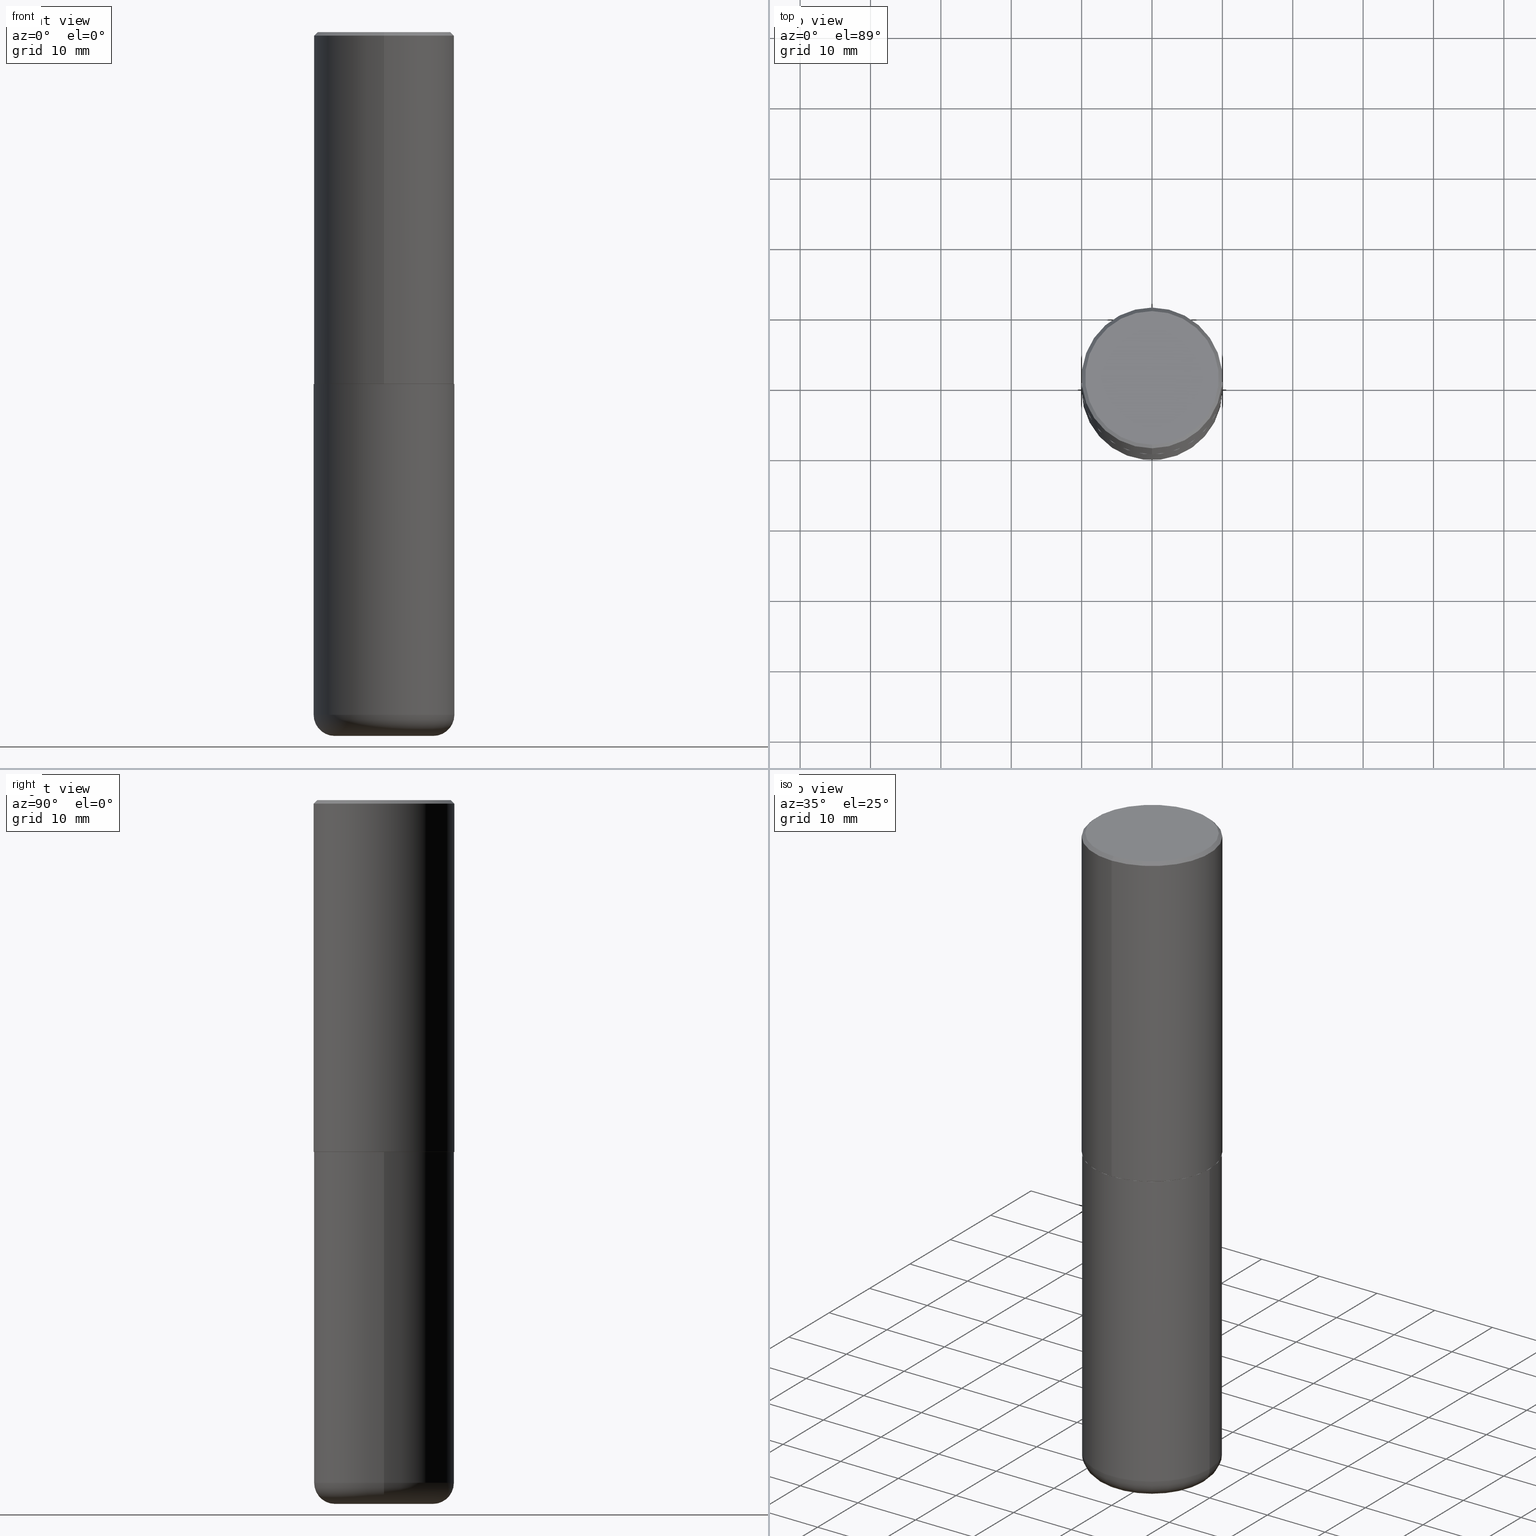
[diagram: canonical four-view strip — front | top / right | iso, engineering-drawing reading convention]
A machine part, canonical four-view strip (front | top / right | iso — engineering-drawing reading convention). The complete STEP part file that produces these views, byte-faithful:
ISO-10303-21;
HEADER;
FILE_DESCRIPTION (( 'STEP AP203' ),
    '1' );
FILE_NAME ('74808.STEP',
    '2024-05-02T19:20:06',
    ( '' ),
    ( '' ),
    'SwSTEP 2.0',
    'SolidWorks 2023',
    '' );
FILE_SCHEMA (( 'CONFIG_CONTROL_DESIGN' ));
ENDSEC;

DATA;
#1 = EDGE_LOOP ( 'NONE', ( #197, #396, #189, #60 ) ) ;
#2 = LOCAL_TIME ( 15, 20, 6.000000000000000000, #144 ) ;
#3 = EDGE_LOOP ( 'NONE', ( #229, #36 ) ) ;
#4 = AXIS2_PLACEMENT_3D ( 'NONE', #27, #19, #185 ) ;
#5 = AXIS2_PLACEMENT_3D ( 'NONE', #41, #336, #261 ) ;
#6 = ORIENTED_EDGE ( 'NONE', *, *, #63, .T. ) ;
#7 = EDGE_CURVE ( 'NONE', #77, #97, #199, .T. ) ;
#8 = DIRECTION ( 'NONE',  ( -2.445468806185136877E-29, 3.491481338843145188E-15, 1.000000000000000000 ) ) ;
#9 = DIRECTION ( 'NONE',  ( -4.937700262165053702E-15, -0.7071067811866175168, 0.7071067811864775177 ) ) ;
#10 = EDGE_CURVE ( 'NONE', #223, #77, #167, .T. ) ;
#11 = CARTESIAN_POINT ( 'NONE',  ( -5.506038201652776757E-45, 7.845509626213831500E-31, 2.249288347782537153E-16 ) ) ;
#12 = ORIENTED_EDGE ( 'NONE', *, *, #337, .F. ) ;
#13 = PLANE ( 'NONE',  #5 ) ;
#14 = CIRCLE ( 'NONE', #38, 0.1181000000000000660 ) ;
#15 = CARTESIAN_POINT ( 'NONE',  ( -2.700978061722651647E-15, -0.3937000000000001609, -0.01999999999999870978 ) ) ;
#16 = CC_DESIGN_APPROVAL ( #157, ( #237 ) ) ;
#17 = DIRECTION ( 'NONE',  ( -6.982962677686265133E-15, -1.000000000000000000, 3.487996385144809755E-15 ) ) ;
#18 = FACE_OUTER_BOUND ( 'NONE', #238, .T. ) ;
#19 = DIRECTION ( 'NONE',  ( -2.445468806185136597E-29, 3.491481338843145583E-15, 1.000000000000000000 ) ) ;
#20 = DATE_TIME_ROLE ( 'classification_date' ) ;
#21 = CLOSED_SHELL ( 'NONE', ( #399, #244, #138, #207, #287, #192, #328, #412 ) ) ;
#22 = AXIS2_PLACEMENT_3D ( 'NONE', #230, #24, #117 ) ;
#23 = COORDINATED_UNIVERSAL_TIME_OFFSET ( 5, 0, .BEHIND. ) ;
#24 = DIRECTION ( 'NONE',  ( 7.105427357601001859E-15, 1.000000000000000000, -3.491481338843145583E-15 ) ) ;
#25 = DATE_AND_TIME ( #405, #2 ) ;
#26 = DIRECTION ( 'NONE',  ( -6.982962677686265133E-15, -1.000000000000000000, 3.478288761986584267E-15 ) ) ;
#27 = CARTESIAN_POINT ( 'NONE',  ( 4.813905344975441835E-29, -6.872981015512731707E-15, -1.968500000000000139 ) ) ;
#28 = APPROVAL_STATUS ( 'not_yet_approved' ) ;
#29 = CARTESIAN_POINT ( 'NONE',  ( 4.816247846760815671E-29, -6.862632887772413316E-15, -1.967500000000000027 ) ) ;
#30 = CIRCLE ( 'NONE', #255, 0.3926999999999999935 ) ;
#31 = AXIS2_PLACEMENT_3D ( 'NONE', #273, #268, #397 ) ;
#32 = CARTESIAN_POINT ( 'NONE',  ( 0.000000000000000000, 0.000000000000000000, 0.000000000000000000 ) ) ;
#33 = CARTESIAN_POINT ( 'NONE',  ( -2.700978061722651647E-15, -0.3937000000000001609, -0.01999999999999870978 ) ) ;
#34 = DIRECTION ( 'NONE',  ( -2.447902336346030930E-29, 3.487996385144809755E-15, 1.000000000000000000 ) ) ;
#35 = VERTEX_POINT ( 'NONE', #370 ) ;
#36 = ORIENTED_EDGE ( 'NONE', *, *, #178, .F. ) ;
#37 = ADVANCED_BREP_SHAPE_REPRESENTATION ( '74808', ( #149, #291, #79 ), #175 ) ;
#38 = AXIS2_PLACEMENT_3D ( 'NONE', #346, #228, #362 ) ;
#39 = EDGE_CURVE ( 'NONE', #159, #35, #14, .T. ) ;
#40 = ORIENTED_EDGE ( 'NONE', *, *, #7, .F. ) ;
#41 = CARTESIAN_POINT ( 'NONE',  ( 4.818695749097161561E-29, -6.866120884157558352E-15, -1.968500000000000139 ) ) ;
#42 = CC_DESIGN_DATE_AND_TIME_ASSIGNMENT ( #119, #20, ( #237 ) ) ;
#43 = ORIENTED_EDGE ( 'NONE', *, *, #94, .T. ) ;
#44 = CIRCLE ( 'NONE', #369, 0.3926999999999999935 ) ;
#45 = DIRECTION ( 'NONE',  ( -2.447902336346030930E-29, 3.487996385144809360E-15, 1.000000000000000000 ) ) ;
#46 = CARTESIAN_POINT ( 'NONE',  ( 4.895804672692082949E-31, -6.975992770289649092E-17, -0.02000000000000008715 ) ) ;
#47 = EDGE_LOOP ( 'NONE', ( #105, #334, #206, #125 ) ) ;
#48 = DIRECTION ( 'NONE',  ( 1.000000000000000000, -6.982962677686266711E-15, 4.876176775795935793E-29 ) ) ;
#49 = APPLICATION_CONTEXT ( 'configuration controlled 3d designs of mechanical parts and assemblies' ) ;
#50 = AXIS2_PLACEMENT_3D ( 'NONE', #114, #80, #87 ) ;
#51 = COORDINATED_UNIVERSAL_TIME_OFFSET ( 5, 0, .BEHIND. ) ;
#52 = CC_DESIGN_PERSON_AND_ORGANIZATION_ASSIGNMENT ( #146, #409, ( #88 ) ) ;
#53 = CARTESIAN_POINT ( 'NONE',  ( 4.818695749097161561E-29, -6.866120884157558352E-15, -1.968500000000000139 ) ) ;
#54 = VECTOR ( 'NONE', #45, 39.37007874015748143 ) ;
#55 = CALENDAR_DATE ( 2024, 2, 5 ) ;
#56 = AXIS2_PLACEMENT_3D ( 'NONE', #218, #222, #355 ) ;
#57 = ADVANCED_FACE ( 'NONE', ( #18 ), #331, .T. ) ;
#58 = CALENDAR_DATE ( 2024, 2, 5 ) ;
#59 = PERSON_AND_ORGANIZATION ( #281, #308 ) ;
#60 = ORIENTED_EDGE ( 'NONE', *, *, #10, .F. ) ;
#61 = CYLINDRICAL_SURFACE ( 'NONE', #115, 0.3937000000000002164 ) ;
#62 = EDGE_LOOP ( 'NONE', ( #226, #172, #303, #109 ) ) ;
#63 = EDGE_CURVE ( 'NONE', #103, #388, #198, .T. ) ;
#64 = VERTEX_POINT ( 'NONE', #69 ) ;
#65 = AXIS2_PLACEMENT_3D ( 'NONE', #368, #72, #168 ) ;
#66 = AXIS2_PLACEMENT_3D ( 'NONE', #391, #239, #112 ) ;
#67 = EDGE_CURVE ( 'NONE', #35, #256, #202, .T. ) ;
#68 = ORIENTED_EDGE ( 'NONE', *, *, #384, .F. ) ;
#69 = CARTESIAN_POINT ( 'NONE',  ( -2.632373081744936315E-15, -0.3736999999999999211, 1.528393083906868747E-15 ) ) ;
#70 = CARTESIAN_POINT ( 'NONE',  ( 2.797406750687540424E-15, 0.3936999999999934441, -1.967500000000001359 ) ) ;
#71 = ORIENTED_EDGE ( 'NONE', *, *, #322, .T. ) ;
#72 = DIRECTION ( 'NONE',  ( 2.438088387897960049E-29, -3.491481338843145188E-15, -1.000000000000000000 ) ) ;
#73 = ORIENTED_EDGE ( 'NONE', *, *, #211, .F. ) ;
#74 = ORIENTED_EDGE ( 'NONE', *, *, #178, .T. ) ;
#75 =( LENGTH_UNIT ( ) NAMED_UNIT ( * ) SI_UNIT ( $, .METRE. ) );
#76 = ADVANCED_FACE ( 'NONE', ( #101 ), #233, .F. ) ;
#77 = VERTEX_POINT ( 'NONE', #176 ) ;
#78 = CARTESIAN_POINT ( 'NONE',  ( 2.793854037008762403E-15, 0.3926999999999931101, -1.968500000000001471 ) ) ;
#79 = AXIS2_PLACEMENT_3D ( 'NONE', #213, #186, #83 ) ;
#80 = DIRECTION ( 'NONE',  ( -2.445468806185136597E-29, 3.491481338843145583E-15, 1.000000000000000000 ) ) ;
#81 = EDGE_CURVE ( 'NONE', #159, #267, #154, .T. ) ;
#82 = APPROVAL_DATE_TIME ( #279, #200 ) ;
#83 = DIRECTION ( 'NONE',  ( 1.000000000000000000, 0.000000000000000000, 0.000000000000000000 ) ) ;
#84 = PRODUCT ( '74808', '74808', '', ( #250 ) ) ;
#85 = CIRCLE ( 'NONE', #224, 0.3937000000000001054 ) ;
#86 = APPROVAL_STATUS ( 'not_yet_approved' ) ;
#87 = DIRECTION ( 'NONE',  ( 1.000000000000000000, -6.982962677686266711E-15, 4.876176775795935793E-29 ) ) ;
#88 = PRODUCT_DEFINITION_FORMATION_WITH_SPECIFIED_SOURCE ( 'ANY', '', #84, .NOT_KNOWN. ) ;
#89 = PERSON_AND_ORGANIZATION ( #281, #308 ) ;
#90 = AXIS2_PLACEMENT_3D ( 'NONE', #204, #341, #364 ) ;
#91 = CARTESIAN_POINT ( 'NONE',  ( -0.3937000000000001054, -1.053621133422057529E-14, -3.818900000000000183 ) ) ;
#92 = EDGE_LOOP ( 'NONE', ( #372, #208 ) ) ;
#93 = ORIENTED_EDGE ( 'NONE', *, *, #359, .T. ) ;
#94 = EDGE_CURVE ( 'NONE', #64, #305, #276, .T. ) ;
#95 = VECTOR ( 'NONE', #98, 39.37007874015748143 ) ;
#96 = VECTOR ( 'NONE', #158, 39.37007874015748143 ) ;
#97 = VERTEX_POINT ( 'NONE', #15 ) ;
#98 = DIRECTION ( 'NONE',  ( -2.447902336346030930E-29, 3.487996385144809360E-15, 1.000000000000000000 ) ) ;
#99 = DIRECTION ( 'NONE',  ( 1.000000000000000000, -6.982962677686266711E-15, 0.000000000000000000 ) ) ;
#100 = ORIENTED_EDGE ( 'NONE', *, *, #39, .T. ) ;
#101 = FACE_OUTER_BOUND ( 'NONE', #92, .T. ) ;
#102 = CARTESIAN_POINT ( 'NONE',  ( 4.895804672692082949E-31, -6.975992770289649092E-17, -0.02000000000000008715 ) ) ;
#103 = VERTEX_POINT ( 'NONE', #70 ) ;
#104 = CARTESIAN_POINT ( 'NONE',  ( 0.2756000000000000116, -1.567046654499579837E-14, -3.937000000000000277 ) ) ;
#105 = ORIENTED_EDGE ( 'NONE', *, *, #107, .T. ) ;
#106 = DIRECTION ( 'NONE',  ( -2.447902336346030930E-29, 3.487996385144809755E-15, 1.000000000000000000 ) ) ;
#107 = EDGE_CURVE ( 'NONE', #35, #240, #394, .T. ) ;
#108 = LINE ( 'NONE', #300, #269 ) ;
#109 = ORIENTED_EDGE ( 'NONE', *, *, #174, .F. ) ;
#110 = DIRECTION ( 'NONE',  ( -6.982962677686265133E-15, -1.000000000000000000, 3.478288761986584267E-15 ) ) ;
#111 = PLANE ( 'NONE',  #215 ) ;
#112 = DIRECTION ( 'NONE',  ( 1.000000000000000000, -6.982962677686266711E-15, 0.000000000000000000 ) ) ;
#113 = AXIS2_PLACEMENT_3D ( 'NONE', #137, #210, #99 ) ;
#114 = CARTESIAN_POINT ( 'NONE',  ( 0.000000000000000000, 0.000000000000000000, 0.000000000000000000 ) ) ;
#115 = AXIS2_PLACEMENT_3D ( 'NONE', #314, #34, #148 ) ;
#116 = ADVANCED_FACE ( 'NONE', ( #271 ), #111, .T. ) ;
#117 = DIRECTION ( 'NONE',  ( -1.000000000000000000, 7.105427357601000281E-15, 0.000000000000000000 ) ) ;
#118 = EDGE_CURVE ( 'NONE', #127, #103, #108, .T. ) ;
#119 = DATE_AND_TIME ( #220, #140 ) ;
#120 = PERSON_AND_ORGANIZATION_ROLE ( 'design_owner' ) ;
#121 = CARTESIAN_POINT ( 'NONE',  ( -0.2756000000000000116, -1.116195879274560421E-14, -3.937000000000000277 ) ) ;
#122 = CC_DESIGN_SECURITY_CLASSIFICATION ( #237, ( #88 ) ) ;
#123 = FACE_OUTER_BOUND ( 'NONE', #234, .T. ) ;
#124 = CC_DESIGN_PERSON_AND_ORGANIZATION_ASSIGNMENT ( #315, #348, ( #214 ) ) ;
#125 = ORIENTED_EDGE ( 'NONE', *, *, #67, .F. ) ;
#126 = LOCAL_TIME ( 15, 20, 6.000000000000000000, #51 ) ;
#127 = VERTEX_POINT ( 'NONE', #78 ) ;
#128 = EDGE_CURVE ( 'NONE', #97, #388, #85, .T. ) ;
#129 = EDGE_LOOP ( 'NONE', ( #320, #6, #194, #40 ) ) ;
#130 = DIRECTION ( 'NONE',  ( -2.445468806185136597E-29, 3.491481338843145583E-15, 1.000000000000000000 ) ) ;
#131 = CIRCLE ( 'NONE', #4, 0.3937000000000000499 ) ;
#132 = CARTESIAN_POINT ( 'NONE',  ( 9.627810689950883669E-29, -1.374596203102546341E-14, -3.937000000000000277 ) ) ;
#133 = EDGE_LOOP ( 'NONE', ( #366, #163, #253, #338 ) ) ;
#134 =( NAMED_UNIT ( * ) PLANE_ANGLE_UNIT ( ) SI_UNIT ( $, .RADIAN. ) );
#135 = ORIENTED_EDGE ( 'NONE', *, *, #235, .T. ) ;
#136 = CARTESIAN_POINT ( 'NONE',  ( 4.813905344975441835E-29, -6.872981015512731707E-15, -1.968500000000000139 ) ) ;
#137 = CARTESIAN_POINT ( 'NONE',  ( 9.339000823940418668E-29, -1.333361808490808928E-14, -3.818900000000000183 ) ) ;
#138 = ADVANCED_FACE ( 'NONE', ( #392 ), #323, .T. ) ;
#139 = ORIENTED_EDGE ( 'NONE', *, *, #107, .F. ) ;
#140 = LOCAL_TIME ( 15, 20, 6.000000000000000000, #181 ) ;
#141 = ORIENTED_EDGE ( 'NONE', *, *, #337, .T. ) ;
#142 = FACE_OUTER_BOUND ( 'NONE', #1, .T. ) ;
#143 = DIRECTION ( 'NONE',  ( 1.000000000000000000, -6.982962677686265922E-15, 0.000000000000000000 ) ) ;
#144 = COORDINATED_UNIVERSAL_TIME_OFFSET ( 5, 0, .BEHIND. ) ;
#145 = CONICAL_SURFACE ( 'NONE', #415, 0.3926999999999999935, 0.7853981633975507526 ) ;
#146 = PERSON_AND_ORGANIZATION ( #281, #308 ) ;
#147 = APPROVAL_DATE_TIME ( #183, #157 ) ;
#148 = DIRECTION ( 'NONE',  ( -6.982962677686265922E-15, -1.000000000000000000, 3.487996385144809360E-15 ) ) ;
#149 = MANIFOLD_SOLID_BREP ( 'Body-Move/Copy2[1]', #236 ) ;
#150 = CARTESIAN_POINT ( 'NONE',  ( 4.818695749097161561E-29, -6.866120884157558352E-15, -1.968500000000000139 ) ) ;
#151 = APPROVAL_DATE_TIME ( #25, #219 ) ;
#152 = FACE_OUTER_BOUND ( 'NONE', #321, .T. ) ;
#153 = DIRECTION ( 'NONE',  ( -2.445468806185136597E-29, 3.491481338843145583E-15, 1.000000000000000000 ) ) ;
#154 = CIRCLE ( 'NONE', #350, 0.2756000000000000116 ) ;
#155 = PERSON_AND_ORGANIZATION ( #281, #308 ) ;
#156 = VECTOR ( 'NONE', #378, 39.37007874015748143 ) ;
#157 = APPROVAL ( #86, 'UNSPECIFIED' ) ;
#158 = DIRECTION ( 'NONE',  ( 4.937700262164533054E-15, 0.7071067811865430208, -0.7071067811865520136 ) ) ;
#159 = VERTEX_POINT ( 'NONE', #104 ) ;
#160 = AXIS2_PLACEMENT_3D ( 'NONE', #11, #400, #17 ) ;
#161 = CIRCLE ( 'NONE', #22, 0.1181000000000000660 ) ;
#162 = ORIENTED_EDGE ( 'NONE', *, *, #7, .T. ) ;
#163 = ORIENTED_EDGE ( 'NONE', *, *, #359, .F. ) ;
#164 = DIRECTION ( 'NONE',  ( -2.445468806185136597E-29, 3.491481338843145583E-15, 1.000000000000000000 ) ) ;
#165 = CIRCLE ( 'NONE', #351, 0.3937000000000001054 ) ;
#166 = DIRECTION ( 'NONE',  ( -1.000000000000000000, 6.982962677686265922E-15, -4.876176775795935793E-29 ) ) ;
#167 = LINE ( 'NONE', #301, #293 ) ;
#168 = DIRECTION ( 'NONE',  ( -1.000000000000000000, 6.982962677686265922E-15, -4.876176775795935793E-29 ) ) ;
#169 = DESIGN_CONTEXT ( 'detailed design', #49, 'design' ) ;
#170 = ORIENTED_EDGE ( 'NONE', *, *, #398, .F. ) ;
#171 = EDGE_CURVE ( 'NONE', #127, #223, #30, .T. ) ;
#172 = ORIENTED_EDGE ( 'NONE', *, *, #384, .T. ) ;
#173 = CARTESIAN_POINT ( 'NONE',  ( 2.749192406205084005E-15, 0.3937000000000000499, -0.02000000000000146105 ) ) ;
#174 = EDGE_CURVE ( 'NONE', #203, #256, #131, .T. ) ;
#175 =( GEOMETRIC_REPRESENTATION_CONTEXT ( 3 ) GLOBAL_UNCERTAINTY_ASSIGNED_CONTEXT ( ( #356 ) ) GLOBAL_UNIT_ASSIGNED_CONTEXT ( ( #298, #134, #274 ) ) REPRESENTATION_CONTEXT ( 'NONE', 'WORKASPACE' ) );
#176 = CARTESIAN_POINT ( 'NONE',  ( -2.749192406205036674E-15, -0.3937000000000070998, -1.967499999999998694 ) ) ;
#177 = LENGTH_MEASURE_WITH_UNIT ( LENGTH_MEASURE( 0.02539999999999999897 ), #75 );
#178 = EDGE_CURVE ( 'NONE', #267, #159, #242, .T. ) ;
#179 = APPROVAL_PERSON_ORGANIZATION ( #89, #219, #377 ) ;
#180 = CYLINDRICAL_SURFACE ( 'NONE', #50, 0.3937000000000001054 ) ;
#181 = COORDINATED_UNIVERSAL_TIME_OFFSET ( 5, 0, .BEHIND. ) ;
#182 = DIRECTION ( 'NONE',  ( 2.447902336346030930E-29, -3.487996385144809755E-15, -1.000000000000000000 ) ) ;
#183 = DATE_AND_TIME ( #58, #195 ) ;
#184 = CARTESIAN_POINT ( 'NONE',  ( 4.818695749097161561E-29, -6.866120884157558352E-15, -1.968500000000000139 ) ) ;
#185 = DIRECTION ( 'NONE',  ( 1.000000000000000000, -6.982962677686265133E-15, 0.000000000000000000 ) ) ;
#186 = DIRECTION ( 'NONE',  ( 0.000000000000000000, 0.000000000000000000, 1.000000000000000000 ) ) ;
#187 = VECTOR ( 'NONE', #8, 39.37007874015748143 ) ;
#188 = AXIS2_PLACEMENT_3D ( 'NONE', #232, #367, #110 ) ;
#189 = ORIENTED_EDGE ( 'NONE', *, *, #380, .F. ) ;
#190 = LINE ( 'NONE', #33, #209 ) ;
#191 = DIRECTION ( 'NONE',  ( -2.447902336346030930E-29, 3.487996385144809755E-15, 1.000000000000000000 ) ) ;
#192 = ADVANCED_FACE ( 'NONE', ( #284 ), #145, .T. ) ;
#193 = CARTESIAN_POINT ( 'NONE',  ( 2.679362779428220707E-15, 0.3736999999999999211, -1.078535414350361218E-15 ) ) ;
#194 = ORIENTED_EDGE ( 'NONE', *, *, #128, .F. ) ;
#195 = LOCAL_TIME ( 15, 20, 6.000000000000000000, #23 ) ;
#196 = ADVANCED_FACE ( 'NONE', ( #404 ), #180, .T. ) ;
#197 = ORIENTED_EDGE ( 'NONE', *, *, #263, .T. ) ;
#198 = LINE ( 'NONE', #258, #95 ) ;
#199 = LINE ( 'NONE', #332, #54 ) ;
#200 = APPROVAL ( #344, 'UNSPECIFIED' ) ;
#201 = CIRCLE ( 'NONE', #66, 0.3937000000000001054 ) ;
#202 = LINE ( 'NONE', #329, #187 ) ;
#203 = VERTEX_POINT ( 'NONE', #225 ) ;
#204 = CARTESIAN_POINT ( 'NONE',  ( 2.609533152651356620E-15, 0.3736999999999999211, -1.190999831739488445E-15 ) ) ;
#205 = DIRECTION ( 'NONE',  ( 1.000000000000000000, -6.982962677686265133E-15, 0.000000000000000000 ) ) ;
#206 = ORIENTED_EDGE ( 'NONE', *, *, #325, .F. ) ;
#207 = ADVANCED_FACE ( 'NONE', ( #246 ), #227, .T. ) ;
#208 = ORIENTED_EDGE ( 'NONE', *, *, #174, .T. ) ;
#209 = VECTOR ( 'NONE', #292, 39.37007874015748143 ) ;
#210 = DIRECTION ( 'NONE',  ( -2.445468806185136597E-29, 3.491481338843145583E-15, 1.000000000000000000 ) ) ;
#211 = EDGE_CURVE ( 'NONE', #305, #388, #318, .T. ) ;
#212 = PERSON_AND_ORGANIZATION_ROLE ( 'creator' ) ;
#213 = CARTESIAN_POINT ( 'NONE',  ( 0.000000000000000000, 0.000000000000000000, 0.000000000000000000 ) ) ;
#214 = PRODUCT_DEFINITION ( 'UNKNOWN', '', #88, #169 ) ;
#215 = AXIS2_PLACEMENT_3D ( 'NONE', #365, #241, #166 ) ;
#216 = CC_DESIGN_APPROVAL ( #200, ( #214 ) ) ;
#217 = APPROVAL_ROLE ( '' ) ;
#218 = CARTESIAN_POINT ( 'NONE',  ( 9.339000823940418668E-29, -1.333361808490808928E-14, -3.818900000000000183 ) ) ;
#219 = APPROVAL ( #28, 'UNSPECIFIED' ) ;
#220 = CALENDAR_DATE ( 2024, 2, 5 ) ;
#221 = PRODUCT_RELATED_PRODUCT_CATEGORY ( 'detail', '', ( #84 ) ) ;
#222 = DIRECTION ( 'NONE',  ( -2.445468806185136597E-29, 3.491481338843145583E-15, 1.000000000000000000 ) ) ;
#223 = VERTEX_POINT ( 'NONE', #319 ) ;
#224 = AXIS2_PLACEMENT_3D ( 'NONE', #343, #371, #264 ) ;
#225 = CARTESIAN_POINT ( 'NONE',  ( -0.3937000000000000499, -7.305892799522895709E-15, -1.968500000000000139 ) ) ;
#226 = ORIENTED_EDGE ( 'NONE', *, *, #249, .F. ) ;
#227 = CONICAL_SURFACE ( 'NONE', #257, 0.3937000000000001054, 0.7853981633974453924 ) ;
#228 = DIRECTION ( 'NONE',  ( -6.982962677686266711E-15, -1.000000000000000000, 3.491481338843145583E-15 ) ) ;
#229 = ORIENTED_EDGE ( 'NONE', *, *, #81, .F. ) ;
#230 = CARTESIAN_POINT ( 'NONE',  ( -0.2756000000000000116, -1.137536230515325427E-14, -3.818900000000000183 ) ) ;
#231 = ORIENTED_EDGE ( 'NONE', *, *, #235, .F. ) ;
#232 = CARTESIAN_POINT ( 'NONE',  ( 4.818695749097161561E-29, -6.866120884157558352E-15, -1.968500000000000139 ) ) ;
#233 = PLANE ( 'NONE',  #65 ) ;
#234 = EDGE_LOOP ( 'NONE', ( #12, #74, #100, #68 ) ) ;
#235 = EDGE_CURVE ( 'NONE', #103, #77, #333, .T. ) ;
#236 = CLOSED_SHELL ( 'NONE', ( #196, #57, #76, #347, #254, #116 ) ) ;
#237 = SECURITY_CLASSIFICATION ( '', '', #352 ) ;
#238 = EDGE_LOOP ( 'NONE', ( #390, #141, #139, #296 ) ) ;
#239 = DIRECTION ( 'NONE',  ( -2.445468806185136597E-29, 3.491481338843145583E-15, 1.000000000000000000 ) ) ;
#240 = VERTEX_POINT ( 'NONE', #91 ) ;
#241 = DIRECTION ( 'NONE',  ( 2.438088387897960049E-29, -3.491481338843145188E-15, -1.000000000000000000 ) ) ;
#242 = CIRCLE ( 'NONE', #406, 0.2756000000000000116 ) ;
#243 = CIRCLE ( 'NONE', #31, 0.3736999999999999211 ) ;
#244 = ADVANCED_FACE ( 'NONE', ( #382 ), #61, .T. ) ;
#245 = PERSON_AND_ORGANIZATION ( #281, #308 ) ;
#246 = FACE_OUTER_BOUND ( 'NONE', #133, .T. ) ;
#247 = AXIS2_PLACEMENT_3D ( 'NONE', #389, #262, #326 ) ;
#248 = AXIS2_PLACEMENT_3D ( 'NONE', #260, #106, #402 ) ;
#249 = EDGE_CURVE ( 'NONE', #240, #203, #411, .T. ) ;
#250 = MECHANICAL_CONTEXT ( 'NONE', #286, 'mechanical' ) ;
#251 = DIRECTION ( 'NONE',  ( -2.447902336346030930E-29, 3.487996385144809755E-15, 1.000000000000000000 ) ) ;
#252 = APPROVAL_PERSON_ORGANIZATION ( #280, #200, #414 ) ;
#253 = ORIENTED_EDGE ( 'NONE', *, *, #211, .T. ) ;
#254 = ADVANCED_FACE ( 'NONE', ( #123 ), #357, .T. ) ;
#255 = AXIS2_PLACEMENT_3D ( 'NONE', #150, #413, #408 ) ;
#256 = VERTEX_POINT ( 'NONE', #289 ) ;
#257 = AXIS2_PLACEMENT_3D ( 'NONE', #383, #182, #358 ) ;
#258 = CARTESIAN_POINT ( 'NONE',  ( 2.797406750687515575E-15, 0.3937000000000002164, -1.373224176831512262E-15 ) ) ;
#259 = ORIENTED_EDGE ( 'NONE', *, *, #94, .F. ) ;
#260 = CARTESIAN_POINT ( 'NONE',  ( 4.816247846760815671E-29, -6.862632887772413316E-15, -1.967500000000000027 ) ) ;
#261 = DIRECTION ( 'NONE',  ( -6.982962677686265922E-15, -1.000000000000000000, 3.487996385144809360E-15 ) ) ;
#262 = DIRECTION ( 'NONE',  ( -2.445468806185136597E-29, 3.491481338843145583E-15, 1.000000000000000000 ) ) ;
#263 = EDGE_CURVE ( 'NONE', #223, #127, #44, .T. ) ;
#264 = DIRECTION ( 'NONE',  ( -6.982962677686265133E-15, -1.000000000000000000, 3.491137977679279029E-15 ) ) ;
#265 = EDGE_LOOP ( 'NONE', ( #259, #71, #327, #73 ) ) ;
#266 = DIRECTION ( 'NONE',  ( -2.447902336346030930E-29, 3.487996385144809755E-15, 1.000000000000000000 ) ) ;
#267 = VERTEX_POINT ( 'NONE', #121 ) ;
#268 = DIRECTION ( 'NONE',  ( -2.447902336346030930E-29, 3.487996385144809755E-15, 1.000000000000000000 ) ) ;
#269 = VECTOR ( 'NONE', #375, 39.37007874015748143 ) ;
#270 = CIRCLE ( 'NONE', #277, 0.3937000000000000499 ) ;
#271 = FACE_OUTER_BOUND ( 'NONE', #3, .T. ) ;
#272 = ORIENTED_EDGE ( 'NONE', *, *, #118, .F. ) ;
#273 = CARTESIAN_POINT ( 'NONE',  ( -5.506038201652776757E-45, 7.845509626213831500E-31, 2.249288347782537153E-16 ) ) ;
#274 =( NAMED_UNIT ( * ) SI_UNIT ( $, .STERADIAN. ) SOLID_ANGLE_UNIT ( ) );
#275 = DIRECTION ( 'NONE',  ( -6.982962677686265133E-15, -1.000000000000000000, 3.478288761986584267E-15 ) ) ;
#276 = CIRCLE ( 'NONE', #160, 0.3736999999999999211 ) ;
#277 = AXIS2_PLACEMENT_3D ( 'NONE', #136, #164, #205 ) ;
#278 = CC_DESIGN_PERSON_AND_ORGANIZATION_ASSIGNMENT ( #310, #120, ( #84 ) ) ;
#279 = DATE_AND_TIME ( #410, #312 ) ;
#280 = PERSON_AND_ORGANIZATION ( #281, #308 ) ;
#281 = PERSON ( 'UNSPECIFIED', 'UNSPECIFIED', 'UNSPECIFIED', ('UNSPECIFIED'), ('UNSPECIFIED'), ('UNSPECIFIED') ) ;
#282 = APPLICATION_PROTOCOL_DEFINITION ( 'international standard', 'config_control_design', 1994, #49 ) ;
#283 = CYLINDRICAL_SURFACE ( 'NONE', #387, 0.3937000000000002164 ) ;
#284 = FACE_OUTER_BOUND ( 'NONE', #294, .T. ) ;
#285 = CARTESIAN_POINT ( 'NONE',  ( 2.749192406205084005E-15, 0.3937000000000000499, -0.02000000000000146105 ) ) ;
#286 = APPLICATION_CONTEXT ( 'configuration controlled 3d designs of mechanical parts and assemblies' ) ;
#287 = ADVANCED_FACE ( 'NONE', ( #152 ), #283, .T. ) ;
#288 = DIRECTION ( 'NONE',  ( -6.982962677686265922E-15, -1.000000000000000000, 3.487996385144809360E-15 ) ) ;
#289 = CARTESIAN_POINT ( 'NONE',  ( 0.3937000000000000499, -9.622173421717814924E-15, -1.968500000000000139 ) ) ;
#290 = ORIENTED_EDGE ( 'NONE', *, *, #10, .T. ) ;
#291 = MANIFOLD_SOLID_BREP ( 'Body-Move/Copy2[2]', #21 ) ;
#292 = DIRECTION ( 'NONE',  ( -4.851104656540950075E-15, -0.7071067811865479058, -0.7071067811865471286 ) ) ;
#293 = VECTOR ( 'NONE', #9, 39.37007874015748143 ) ;
#294 = EDGE_LOOP ( 'NONE', ( #272, #374, #290, #231 ) ) ;
#295 = CARTESIAN_POINT ( 'NONE',  ( 0.000000000000000000, 0.000000000000000000, 0.000000000000000000 ) ) ;
#296 = ORIENTED_EDGE ( 'NONE', *, *, #39, .F. ) ;
#297 = ORIENTED_EDGE ( 'NONE', *, *, #263, .F. ) ;
#298 =( CONVERSION_BASED_UNIT ( 'INCH', #177 ) LENGTH_UNIT ( ) NAMED_UNIT ( #401 ) );
#299 = AXIS2_PLACEMENT_3D ( 'NONE', #29, #191, #349 ) ;
#300 = CARTESIAN_POINT ( 'NONE',  ( 2.790301323329961110E-15, 0.3926999999999931101, -1.968500000000001471 ) ) ;
#301 = CARTESIAN_POINT ( 'NONE',  ( -2.742209443527348687E-15, -0.3927000000000069324, -1.968499999999998584 ) ) ;
#302 = DIRECTION ( 'NONE',  ( 2.447902336346030930E-29, -3.487996385144809755E-15, -1.000000000000000000 ) ) ;
#303 = ORIENTED_EDGE ( 'NONE', *, *, #67, .T. ) ;
#304 = FACE_OUTER_BOUND ( 'NONE', #393, .T. ) ;
#305 = VERTEX_POINT ( 'NONE', #193 ) ;
#306 = FACE_OUTER_BOUND ( 'NONE', #386, .T. ) ;
#307 = AXIS2_PLACEMENT_3D ( 'NONE', #102, #302, #395 ) ;
#308 = ORGANIZATION ( 'UNSPECIFIED', 'UNSPECIFIED', '' ) ;
#309 = PLANE ( 'NONE',  #90 ) ;
#310 = PERSON_AND_ORGANIZATION ( #281, #308 ) ;
#311 = PERSON_AND_ORGANIZATION_ROLE ( 'classification_officer' ) ;
#312 = LOCAL_TIME ( 15, 20, 6.000000000000000000, #417 ) ;
#313 = DATE_TIME_ROLE ( 'creation_date' ) ;
#314 = CARTESIAN_POINT ( 'NONE',  ( 0.000000000000000000, 0.000000000000000000, 0.000000000000000000 ) ) ;
#315 = PERSON_AND_ORGANIZATION ( #281, #308 ) ;
#316 = DIRECTION ( 'NONE',  ( -2.447902336346030930E-29, 3.487996385144809755E-15, 1.000000000000000000 ) ) ;
#317 = CARTESIAN_POINT ( 'NONE',  ( 9.627810689950883669E-29, -1.374596203102546341E-14, -3.937000000000000277 ) ) ;
#318 = LINE ( 'NONE', #285, #96 ) ;
#319 = CARTESIAN_POINT ( 'NONE',  ( -2.742209443527348687E-15, -0.3927000000000069324, -1.968499999999998584 ) ) ;
#320 = ORIENTED_EDGE ( 'NONE', *, *, #380, .T. ) ;
#321 = EDGE_LOOP ( 'NONE', ( #363, #135, #162, #170 ) ) ;
#322 = EDGE_CURVE ( 'NONE', #64, #97, #190, .T. ) ;
#323 = CONICAL_SURFACE ( 'NONE', #307, 0.3937000000000001054, 0.7853981633974453924 ) ;
#324 = CC_DESIGN_APPROVAL ( #219, ( #88 ) ) ;
#325 = EDGE_CURVE ( 'NONE', #256, #203, #270, .T. ) ;
#326 = DIRECTION ( 'NONE',  ( 1.000000000000000000, -6.982962677686266711E-15, 4.883557194083112340E-29 ) ) ;
#327 = ORIENTED_EDGE ( 'NONE', *, *, #128, .T. ) ;
#328 = ADVANCED_FACE ( 'NONE', ( #304 ), #13, .F. ) ;
#329 = CARTESIAN_POINT ( 'NONE',  ( 0.3937000000000001054, -2.749192406205084005E-15, 1.919750796630860452E-29 ) ) ;
#330 = DIRECTION ( 'NONE',  ( 1.000000000000000000, -6.982962677686265922E-15, 0.000000000000000000 ) ) ;
#331 = TOROIDAL_SURFACE ( 'NONE', #247, 0.2756000000000000116, 0.1181000000000000522 ) ;
#332 = CARTESIAN_POINT ( 'NONE',  ( -2.749192406205084400E-15, -0.3937000000000002164, 1.373224176831512262E-15 ) ) ;
#333 = CIRCLE ( 'NONE', #299, 0.3937000000000002720 ) ;
#334 = ORIENTED_EDGE ( 'NONE', *, *, #249, .T. ) ;
#335 = APPLICATION_PROTOCOL_DEFINITION ( 'international standard', 'config_control_design', 1994, #286 ) ;
#336 = DIRECTION ( 'NONE',  ( -2.447902336346030930E-29, 3.487996385144809360E-15, 1.000000000000000000 ) ) ;
#337 = EDGE_CURVE ( 'NONE', #267, #240, #161, .T. ) ;
#338 = ORIENTED_EDGE ( 'NONE', *, *, #398, .T. ) ;
#339 = CC_DESIGN_DATE_AND_TIME_ASSIGNMENT ( #353, #313, ( #214 ) ) ;
#340 = DIRECTION ( 'NONE',  ( -2.445468806185136597E-29, 3.491481338843145583E-15, 1.000000000000000000 ) ) ;
#341 = DIRECTION ( 'NONE',  ( 2.447902336346030930E-29, -3.487996385144809360E-15, -1.000000000000000000 ) ) ;
#342 = AXIS2_PLACEMENT_3D ( 'NONE', #295, #130, #48 ) ;
#343 = CARTESIAN_POINT ( 'NONE',  ( 4.895804672692082949E-31, -6.975992770289649092E-17, -0.02000000000000008715 ) ) ;
#344 = APPROVAL_STATUS ( 'not_yet_approved' ) ;
#345 = PRODUCT_DEFINITION_SHAPE ( 'NONE', 'NONE',  #214 ) ;
#346 = CARTESIAN_POINT ( 'NONE',  ( 0.2756000000000000116, -1.525812259887842581E-14, -3.818900000000000183 ) ) ;
#347 = ADVANCED_FACE ( 'NONE', ( #403 ), #407, .T. ) ;
#348 = PERSON_AND_ORGANIZATION_ROLE ( 'creator' ) ;
#349 = DIRECTION ( 'NONE',  ( -6.982962677686265922E-15, -1.000000000000000000, 3.469453890861393601E-15 ) ) ;
#350 = AXIS2_PLACEMENT_3D ( 'NONE', #132, #340, #330 ) ;
#351 = AXIS2_PLACEMENT_3D ( 'NONE', #46, #266, #373 ) ;
#352 = SECURITY_CLASSIFICATION_LEVEL ( 'unclassified' ) ;
#353 = DATE_AND_TIME ( #55, #126 ) ;
#354 = CC_DESIGN_PERSON_AND_ORGANIZATION_ASSIGNMENT ( #59, #212, ( #88 ) ) ;
#355 = DIRECTION ( 'NONE',  ( 1.000000000000000000, -6.982962677686266711E-15, 4.883557194083112340E-29 ) ) ;
#356 = UNCERTAINTY_MEASURE_WITH_UNIT (LENGTH_MEASURE( 1.000000000000000082E-05 ), #298, 'distance_accuracy_value', 'NONE');
#357 = TOROIDAL_SURFACE ( 'NONE', #56, 0.2756000000000000116, 0.1181000000000000522 ) ;
#358 = DIRECTION ( 'NONE',  ( 6.982962677686265133E-15, 1.000000000000000000, -3.491137977679279029E-15 ) ) ;
#359 = EDGE_CURVE ( 'NONE', #305, #64, #243, .T. ) ;
#360 = CC_DESIGN_PERSON_AND_ORGANIZATION_ASSIGNMENT ( #155, #311, ( #237 ) ) ;
#361 = ORIENTED_EDGE ( 'NONE', *, *, #171, .F. ) ;
#362 = DIRECTION ( 'NONE',  ( 1.000000000000000000, -6.982962677686269077E-15, 0.000000000000000000 ) ) ;
#363 = ORIENTED_EDGE ( 'NONE', *, *, #63, .F. ) ;
#364 = DIRECTION ( 'NONE',  ( 6.982962677686265922E-15, 1.000000000000000000, -3.487996385144809360E-15 ) ) ;
#365 = CARTESIAN_POINT ( 'NONE',  ( 9.627810689950883669E-29, -1.374596203102546341E-14, -3.937000000000000277 ) ) ;
#366 = ORIENTED_EDGE ( 'NONE', *, *, #322, .F. ) ;
#367 = DIRECTION ( 'NONE',  ( -2.447902336346030930E-29, 3.487996385144809755E-15, 1.000000000000000000 ) ) ;
#368 = CARTESIAN_POINT ( 'NONE',  ( 4.813905344975441835E-29, -6.872981015512731707E-15, -1.968500000000000139 ) ) ;
#369 = AXIS2_PLACEMENT_3D ( 'NONE', #184, #316, #26 ) ;
#370 = CARTESIAN_POINT ( 'NONE',  ( 0.3937000000000001054, -1.608281049111317408E-14, -3.818900000000000183 ) ) ;
#371 = DIRECTION ( 'NONE',  ( -2.447902336346030930E-29, 3.487996385144809755E-15, 1.000000000000000000 ) ) ;
#372 = ORIENTED_EDGE ( 'NONE', *, *, #325, .T. ) ;
#373 = DIRECTION ( 'NONE',  ( -6.982962677686265133E-15, -1.000000000000000000, 3.491137977679279029E-15 ) ) ;
#374 = ORIENTED_EDGE ( 'NONE', *, *, #171, .T. ) ;
#375 = DIRECTION ( 'NONE',  ( 5.024295867788576727E-15, 0.7071067811866224018, 0.7071067811864726327 ) ) ;
#376 = CONICAL_SURFACE ( 'NONE', #188, 0.3926999999999999935, 0.7853981633975507526 ) ;
#377 = APPROVAL_ROLE ( '' ) ;
#378 = DIRECTION ( 'NONE',  ( -2.445468806185136877E-29, 3.491481338843145188E-15, 1.000000000000000000 ) ) ;
#379 = APPROVAL_PERSON_ORGANIZATION ( #245, #157, #217 ) ;
#380 = EDGE_CURVE ( 'NONE', #77, #103, #385, .T. ) ;
#381 = SHAPE_DEFINITION_REPRESENTATION ( #345, #37 ) ;
#382 = FACE_OUTER_BOUND ( 'NONE', #129, .T. ) ;
#383 = CARTESIAN_POINT ( 'NONE',  ( 4.895804672692082949E-31, -6.975992770289649092E-17, -0.02000000000000008715 ) ) ;
#384 = EDGE_CURVE ( 'NONE', #240, #35, #201, .T. ) ;
#385 = CIRCLE ( 'NONE', #248, 0.3937000000000002720 ) ;
#386 = EDGE_LOOP ( 'NONE', ( #93, #43 ) ) ;
#387 = AXIS2_PLACEMENT_3D ( 'NONE', #32, #251, #288 ) ;
#388 = VERTEX_POINT ( 'NONE', #173 ) ;
#389 = CARTESIAN_POINT ( 'NONE',  ( 9.339000823940418668E-29, -1.333361808490808928E-14, -3.818900000000000183 ) ) ;
#390 = ORIENTED_EDGE ( 'NONE', *, *, #81, .T. ) ;
#391 = CARTESIAN_POINT ( 'NONE',  ( 9.339000823940418668E-29, -1.333361808490808928E-14, -3.818900000000000183 ) ) ;
#392 = FACE_OUTER_BOUND ( 'NONE', #265, .T. ) ;
#393 = EDGE_LOOP ( 'NONE', ( #297, #361 ) ) ;
#394 = CIRCLE ( 'NONE', #113, 0.3937000000000001054 ) ;
#395 = DIRECTION ( 'NONE',  ( 6.982962677686265133E-15, 1.000000000000000000, -3.491137977679279029E-15 ) ) ;
#396 = ORIENTED_EDGE ( 'NONE', *, *, #118, .T. ) ;
#397 = DIRECTION ( 'NONE',  ( -6.982962677686265133E-15, -1.000000000000000000, 3.487996385144809755E-15 ) ) ;
#398 = EDGE_CURVE ( 'NONE', #388, #97, #165, .T. ) ;
#399 = ADVANCED_FACE ( 'NONE', ( #142 ), #376, .T. ) ;
#400 = DIRECTION ( 'NONE',  ( -2.447902336346030930E-29, 3.487996385144809755E-15, 1.000000000000000000 ) ) ;
#401 = DIMENSIONAL_EXPONENTS ( 1.000000000000000000, 0.000000000000000000, 0.000000000000000000, 0.000000000000000000, 0.000000000000000000, 0.000000000000000000, 0.000000000000000000 ) ;
#402 = DIRECTION ( 'NONE',  ( -6.982962677686265922E-15, -1.000000000000000000, 3.469453890861393601E-15 ) ) ;
#403 = FACE_OUTER_BOUND ( 'NONE', #62, .T. ) ;
#404 = FACE_OUTER_BOUND ( 'NONE', #47, .T. ) ;
#405 = CALENDAR_DATE ( 2024, 2, 5 ) ;
#406 = AXIS2_PLACEMENT_3D ( 'NONE', #317, #153, #143 ) ;
#407 = CYLINDRICAL_SURFACE ( 'NONE', #342, 0.3937000000000001054 ) ;
#408 = DIRECTION ( 'NONE',  ( -6.982962677686265133E-15, -1.000000000000000000, 3.478288761986584267E-15 ) ) ;
#409 = PERSON_AND_ORGANIZATION_ROLE ( 'design_supplier' ) ;
#410 = CALENDAR_DATE ( 2024, 2, 5 ) ;
#411 = LINE ( 'NONE', #418, #156 ) ;
#412 = ADVANCED_FACE ( 'NONE', ( #306 ), #309, .F. ) ;
#413 = DIRECTION ( 'NONE',  ( -2.447902336346030930E-29, 3.487996385144809755E-15, 1.000000000000000000 ) ) ;
#414 = APPROVAL_ROLE ( '' ) ;
#415 = AXIS2_PLACEMENT_3D ( 'NONE', #53, #416, #275 ) ;
#416 = DIRECTION ( 'NONE',  ( -2.447902336346030930E-29, 3.487996385144809755E-15, 1.000000000000000000 ) ) ;
#417 = COORDINATED_UNIVERSAL_TIME_OFFSET ( 5, 0, .BEHIND. ) ;
#418 = CARTESIAN_POINT ( 'NONE',  ( -0.3937000000000001054, 2.797406750687515181E-15, -1.936584745033357016E-29 ) ) ;
ENDSEC;
END-ISO-10303-21;
